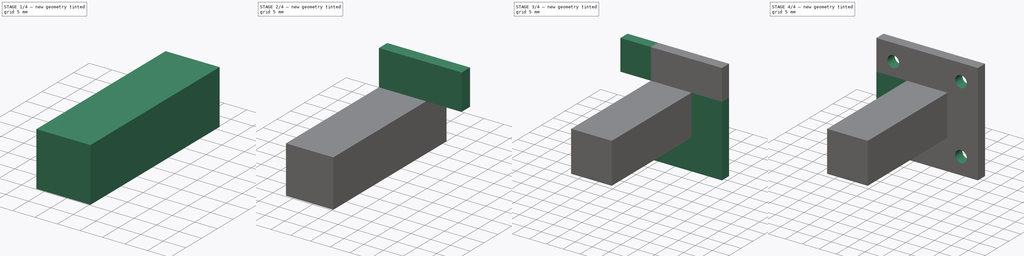
[diagram: build sequence overview — one tinted view per stage of 4, left to right]
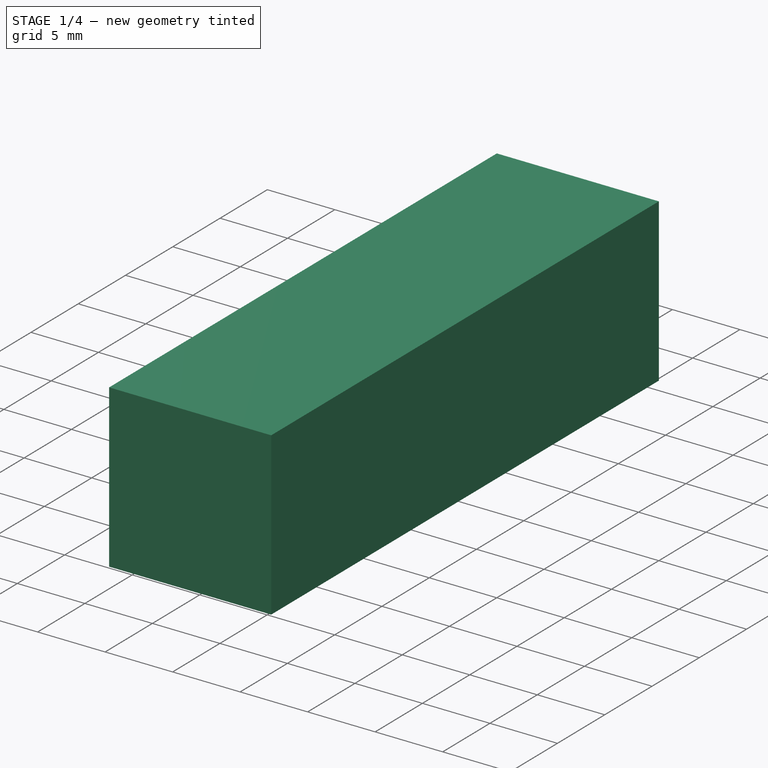
[diagram: stage 1 of 4 — iso view after this stage's code; geometry added in this stage tinted green]
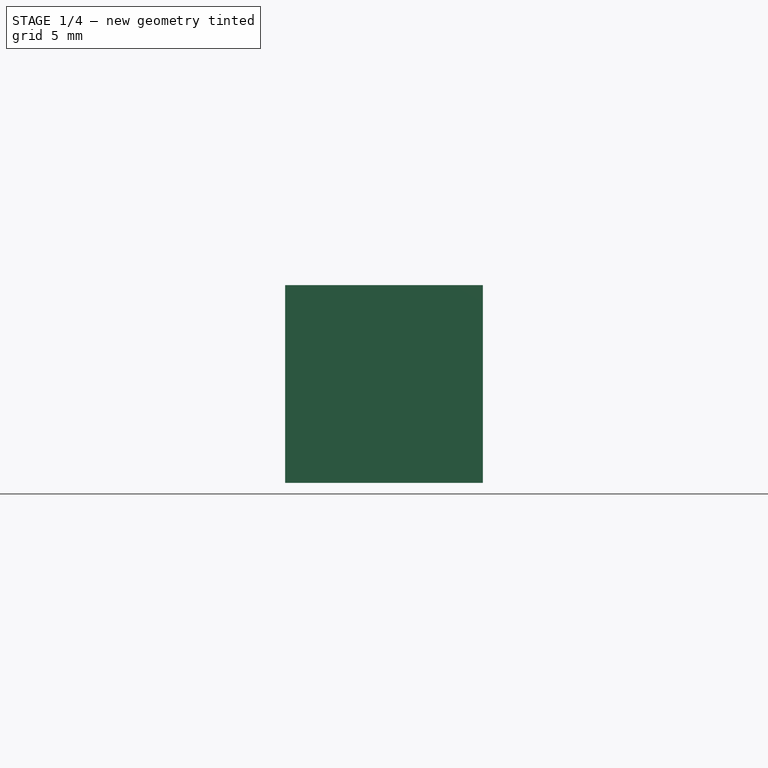
[diagram: stage 1 of 4 — front view after this stage's code; geometry added in this stage tinted green]
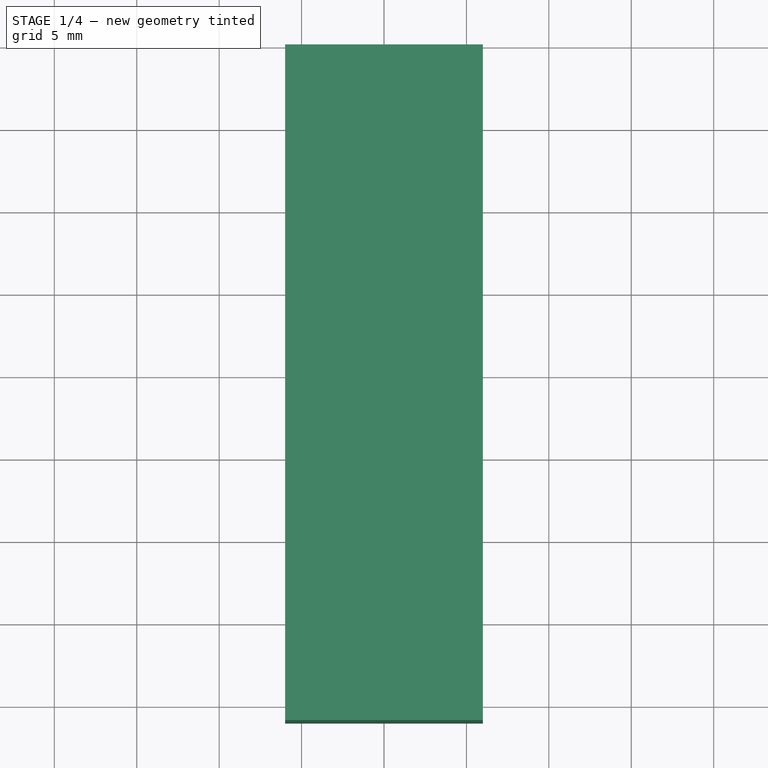
[diagram: stage 1 of 4 — top view after this stage's code; geometry added in this stage tinted green]
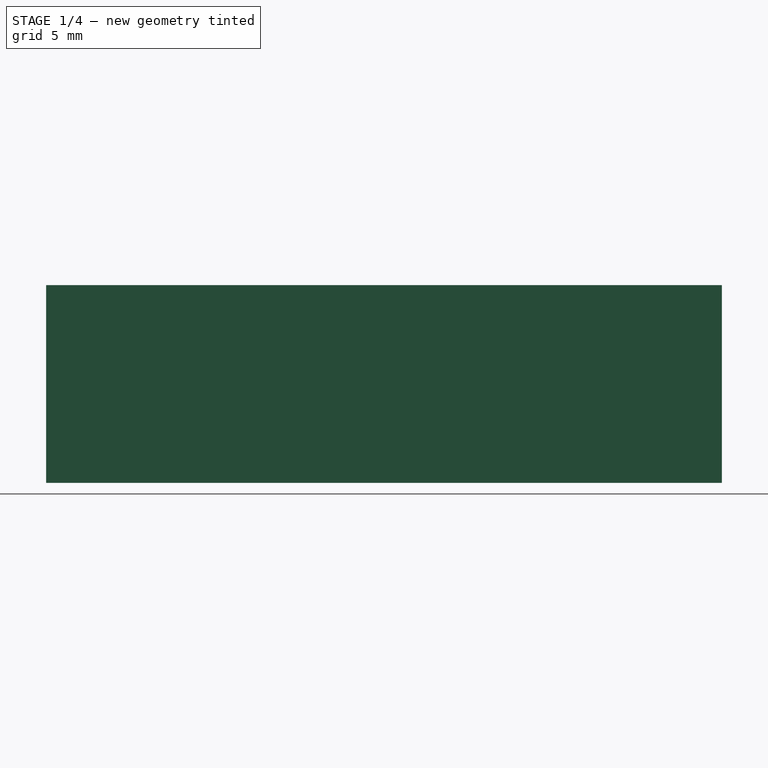
[diagram: stage 1 of 4 — right view after this stage's code; geometry added in this stage tinted green]
FCSTD DOCUMENT  (FreeCAD 0.18.4R)
Label: crystal_holder
License: All rights reserved
LicenseURL: http://en.wikipedia.org/wiki/All_rights_reserved
objects: PartDesign::Pad×7, Sketcher::SketchObject×5, PartDesign::Pocket×2, PartDesign::Body×1
note: 24 computed .brp shape members not serialized (recipe doc carries the construction recipe); baked Part::Feature solids carry a one-line shape summary decoded from their .brp

FEATURE [Sketcher::SketchObject] Sketch
  MapMode = 5
  Placement = pos=(0,0,0) rot=(1,0,0;1.5708rad)
  Support = -> [XZ_Plane]
  sketch-geometry (4):
    g0: LineSegment StartX=-6 StartY=6 StartZ=0 EndX=6 EndY=6 EndZ=0
    g1: LineSegment StartX=6 StartY=6 StartZ=0 EndX=6 EndY=-6 EndZ=0
    g2: LineSegment StartX=6 StartY=-6 StartZ=0 EndX=-6 EndY=-6 EndZ=0
    g3: LineSegment StartX=-6 StartY=-6 StartZ=0 EndX=-6 EndY=6 EndZ=0
  constraints (12):
    c: Coincident(g0,g1)
    c: Coincident(g1,g2)
    c: Coincident(g2,g3)
    c: Coincident(g3,g0)
    c: Horizontal(g0)
    c: Horizontal(g2)
    c: Vertical(g1)
    c: Vertical(g3)
    c: DistanceX(g0,g0) = 12
    c: DistanceY(g1,g1) = 12
    c: Distance(g-1,g0) = 6
    c: Distance(g-1,g1) = 6
FEATURE [PartDesign::Pad] Pad
  Length = 41
  Length2 = 100
  Placement = pos=(0,0,0) rot=(1,0,0;1.5708rad)
  Profile = -> Sketch
  Type = 0
FEATURE [Sketcher::SketchObject] Sketch001
  MapMode = 5
  Placement = pos=(0,0,0) rot=(-1,0,0;1.5708rad)
  Support = -> [Pad]
  sketch-geometry (4):
    g0: LineSegment StartX=-3.75 StartY=1.875 StartZ=0 EndX=3.75 EndY=1.875 EndZ=0
    g1: LineSegment StartX=3.75 StartY=1.875 StartZ=0 EndX=3.75 EndY=-1.875 EndZ=0
    g2: LineSegment StartX=3.75 StartY=-1.875 StartZ=0 EndX=-3.75 EndY=-1.875 EndZ=0
    g3: LineSegment StartX=-3.75 StartY=-1.875 StartZ=0 EndX=-3.75 EndY=1.875 EndZ=0
  constraints (12):
    c: Coincident(g0,g1)
    c: Coincident(g1,g2)
    c: Coincident(g2,g3)
    c: Coincident(g3,g0)
    c: Horizontal(g0)
    c: Horizontal(g2)
    c: Vertical(g1)
    c: Vertical(g3)
    c: DistanceX(g0,g0) = 7.5
    c: DistanceY(g1,g1) = 3.75
    c: Distance(g-1,g2) = 1.875
    c: Distance(g-1,g3) = 3.75
FEATURE [PartDesign::Pocket] Pocket
  BaseFeature = -> Pad
  Length = 36.1
  Length2 = 100
  Placement = pos=(0,0,0) rot=(1,0,0;1.5708rad)
  Profile = -> Sketch001
  Type = 0
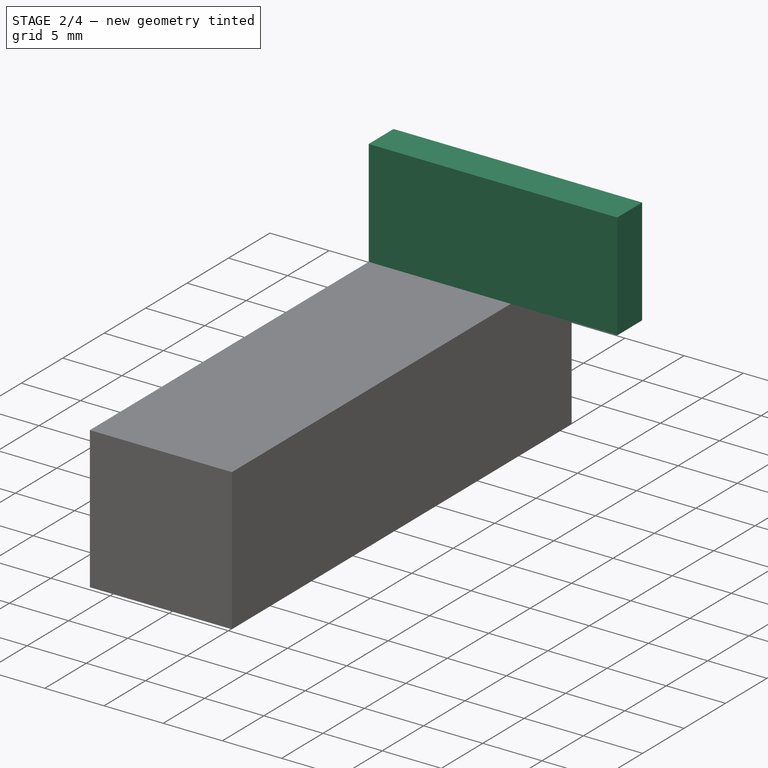
[diagram: stage 2 of 4 — iso view after this stage's code; geometry added in this stage tinted green]
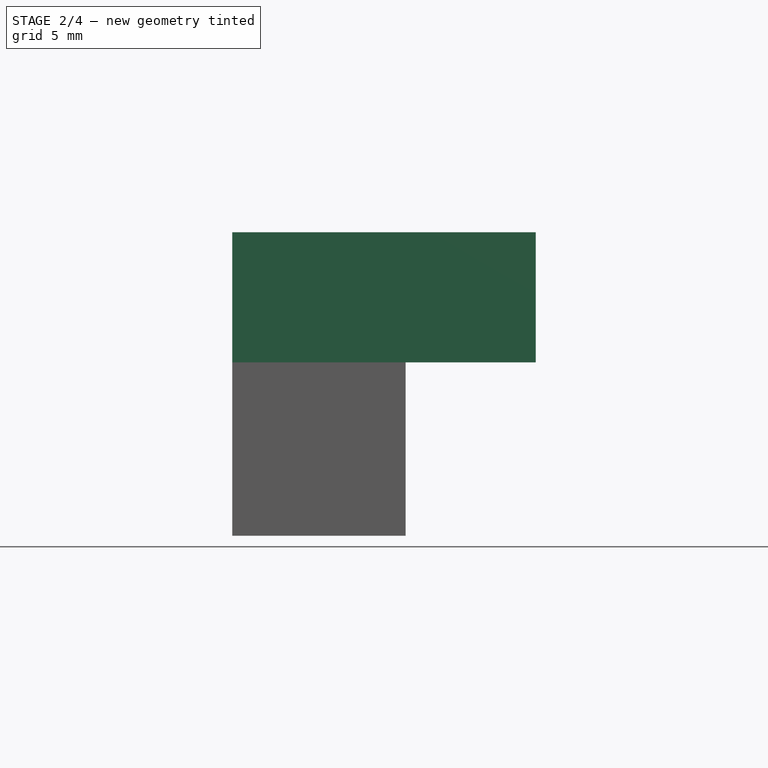
[diagram: stage 2 of 4 — front view after this stage's code; geometry added in this stage tinted green]
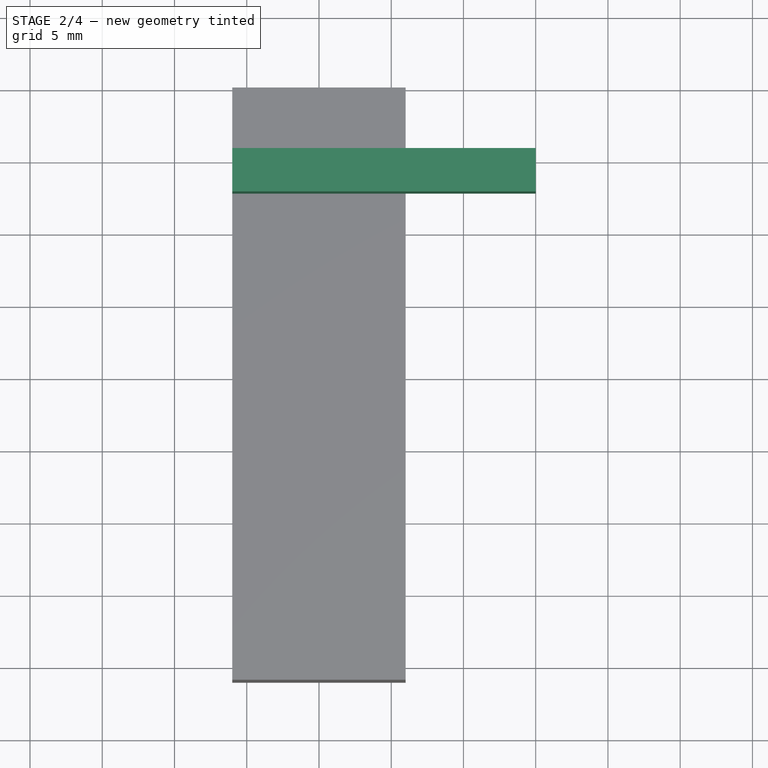
[diagram: stage 2 of 4 — top view after this stage's code; geometry added in this stage tinted green]
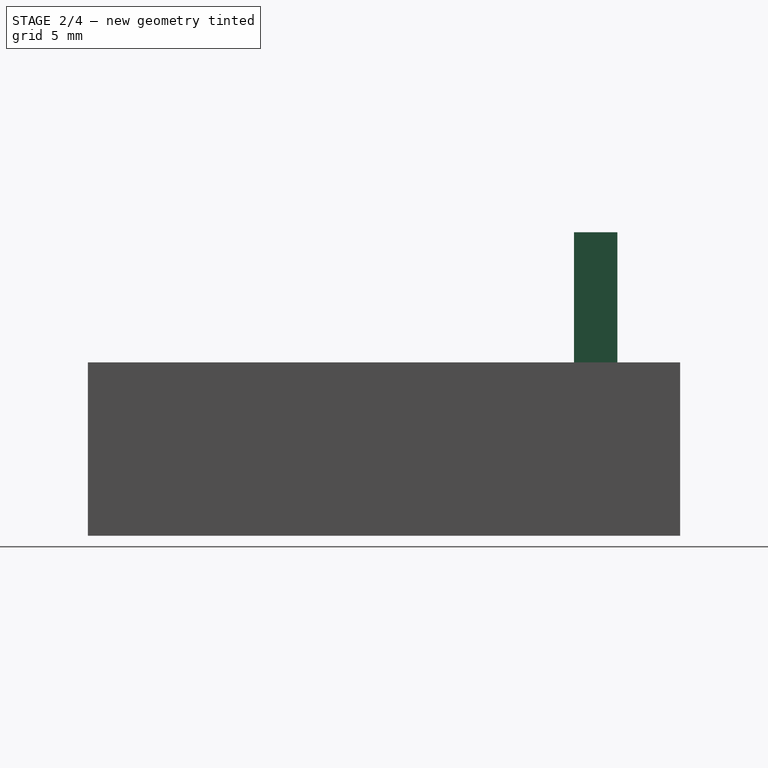
[diagram: stage 2 of 4 — right view after this stage's code; geometry added in this stage tinted green]
FEATURE [Sketcher::SketchObject] Sketch002
  ExternalGeometry = -> [Pocket]
  MapMode = 5
  Placement = pos=(0,6.7e-15,6) rot=(0,0,1;3.14159rad)
  Support = -> [Pocket]
FEATURE [Sketcher::SketchObject] Sketch003
  ExternalGeometry = -> [Pocket]
  MapMode = 5
  Placement = pos=(0,6.7e-15,6) rot=(0,0,1;3.14159rad)
  Support = -> [Pocket]
  sketch-geometry (4):
    g0: LineSegment StartX=-6 StartY=7.35 StartZ=0 EndX=6 EndY=7.35 EndZ=0
    g1: LineSegment StartX=6 StartY=7.35 StartZ=0 EndX=6 EndY=4.35 EndZ=0
    g2: LineSegment StartX=6 StartY=4.35 StartZ=0 EndX=-6 EndY=4.35 EndZ=0
    g3: LineSegment StartX=-6 StartY=4.35 StartZ=0 EndX=-6 EndY=7.35 EndZ=0
  constraints (12):
    c: Coincident(g0,g1)
    c: Coincident(g1,g2)
    c: Coincident(g2,g3)
    c: Coincident(g3,g0)
    c: Horizontal(g0)
    c: Horizontal(g2)
    c: Vertical(g1)
    c: Vertical(g3)
    c: Distance(g-1,g2) = 4.35
    c: DistanceY(g1,g1) = 3
    c: PointOnObject(g1,g-4)
    c: PointOnObject(g2,g-3)
FEATURE [PartDesign::Pad] Pad001
  BaseFeature = -> Pocket
  Length = 9
  Length2 = 100
  Placement = pos=(0,0,0) rot=(1,0,0;1.5708rad)
  Profile = -> Sketch003
  Type = 0
FEATURE [PartDesign::Pad] Pad002
  BaseFeature = -> Pad001
  Length = 9
  Length2 = 100
  Placement = pos=(0,0,0) rot=(1,0,0;1.5708rad)
  Profile = -> Pad001 [Face11]
  Type = 0
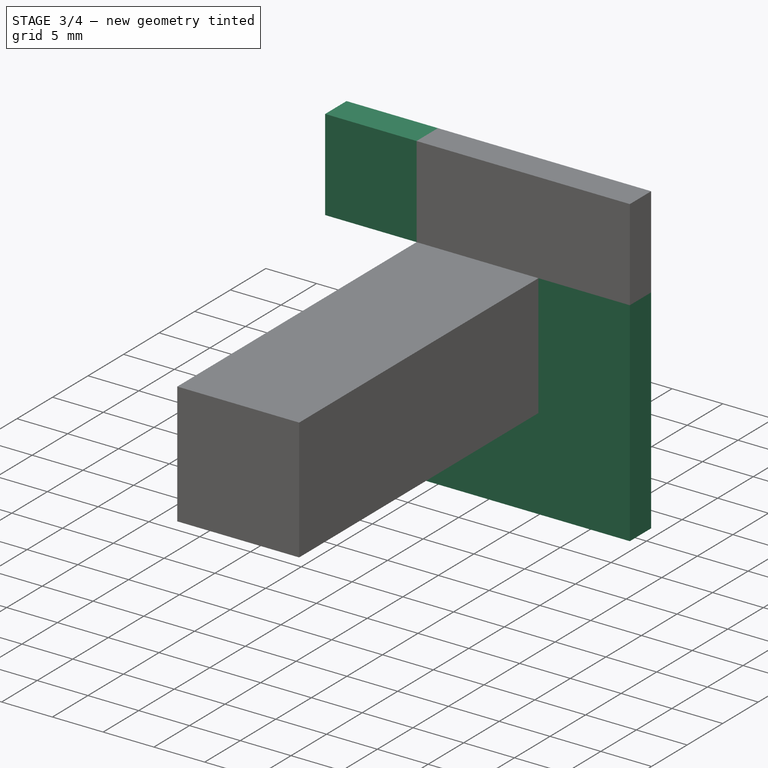
[diagram: stage 3 of 4 — iso view after this stage's code; geometry added in this stage tinted green]
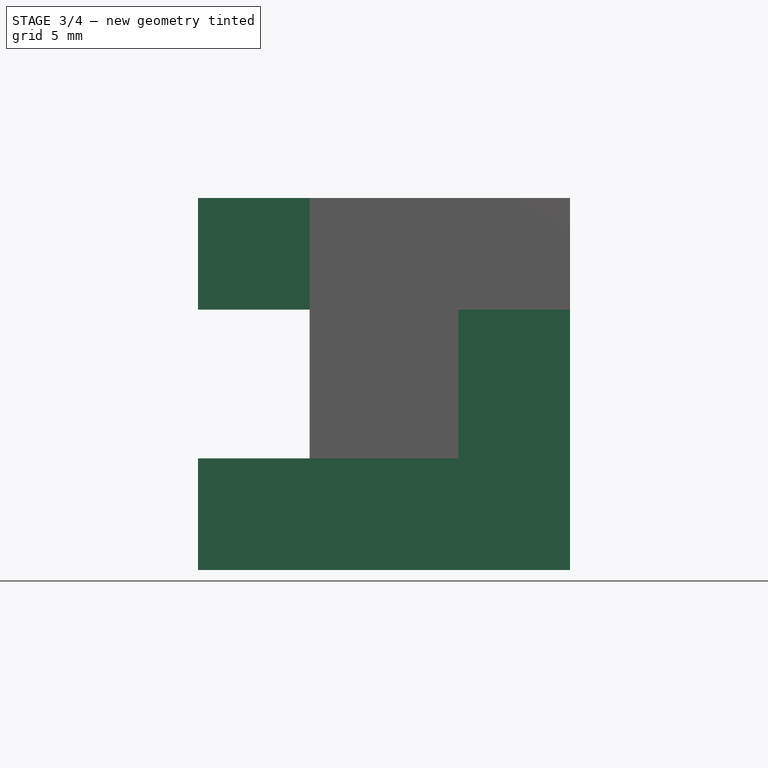
[diagram: stage 3 of 4 — front view after this stage's code; geometry added in this stage tinted green]
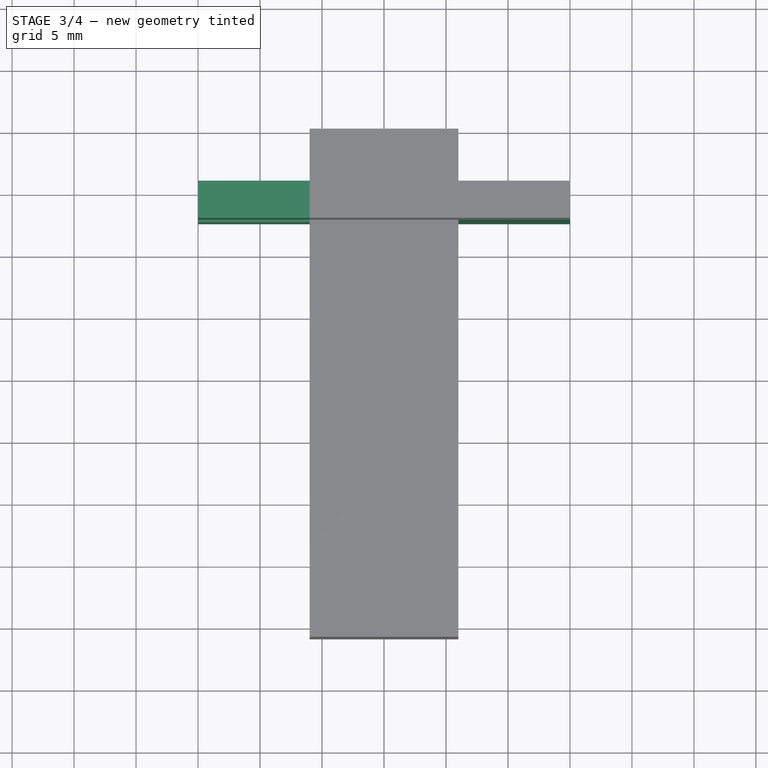
[diagram: stage 3 of 4 — top view after this stage's code; geometry added in this stage tinted green]
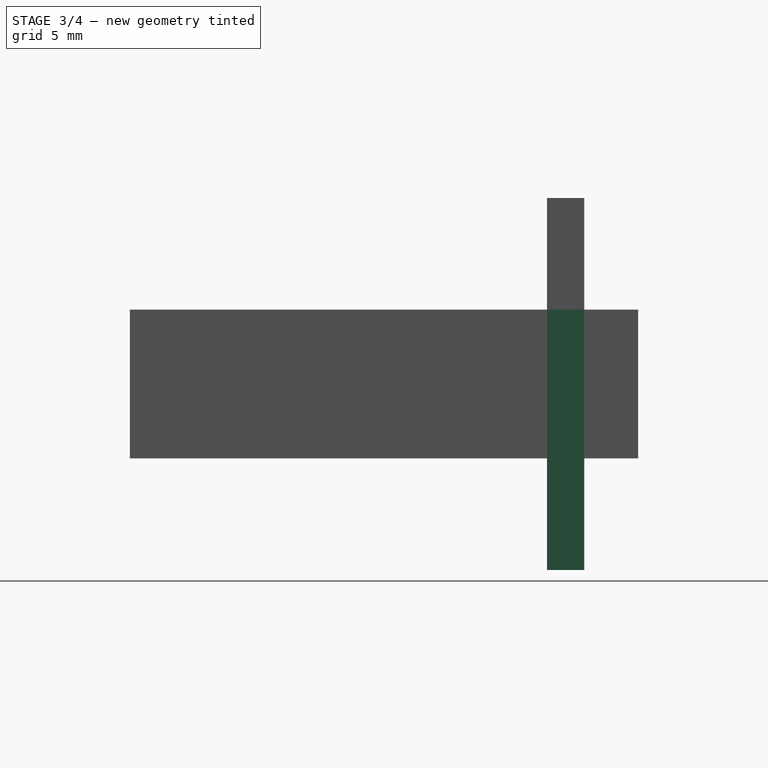
[diagram: stage 3 of 4 — right view after this stage's code; geometry added in this stage tinted green]
FEATURE [PartDesign::Pad] Pad003
  BaseFeature = -> Pad002
  Length = 21
  Length2 = 100
  Placement = pos=(0,0,0) rot=(1,0,0;1.5708rad)
  Profile = -> Pad002 [Face11]
  Type = 0
FEATURE [PartDesign::Pad] Pad004
  BaseFeature = -> Pad003
  Length = 21
  Length2 = 100
  Placement = pos=(0,0,0) rot=(1,0,0;1.5708rad)
  Profile = -> Pad003 [Face17]
  Type = 0
FEATURE [PartDesign::Pad] Pad005
  BaseFeature = -> Pad004
  Length = 9
  Length2 = 100
  Placement = pos=(0,0,0) rot=(1,0,0;1.5708rad)
  Profile = -> Pad004 [Face12]
  Type = 0
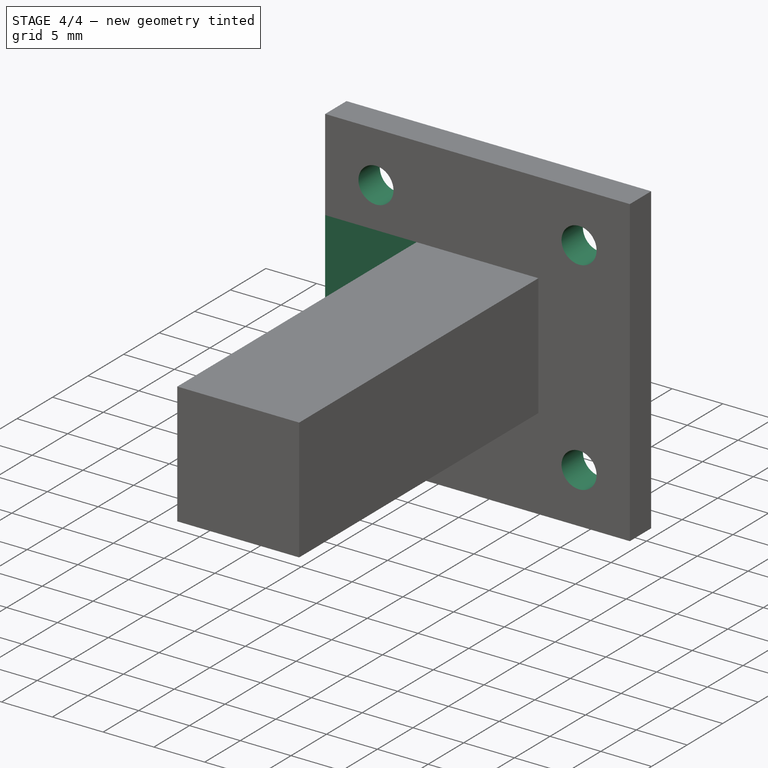
[diagram: stage 4 of 4 — iso view after this stage's code; geometry added in this stage tinted green]
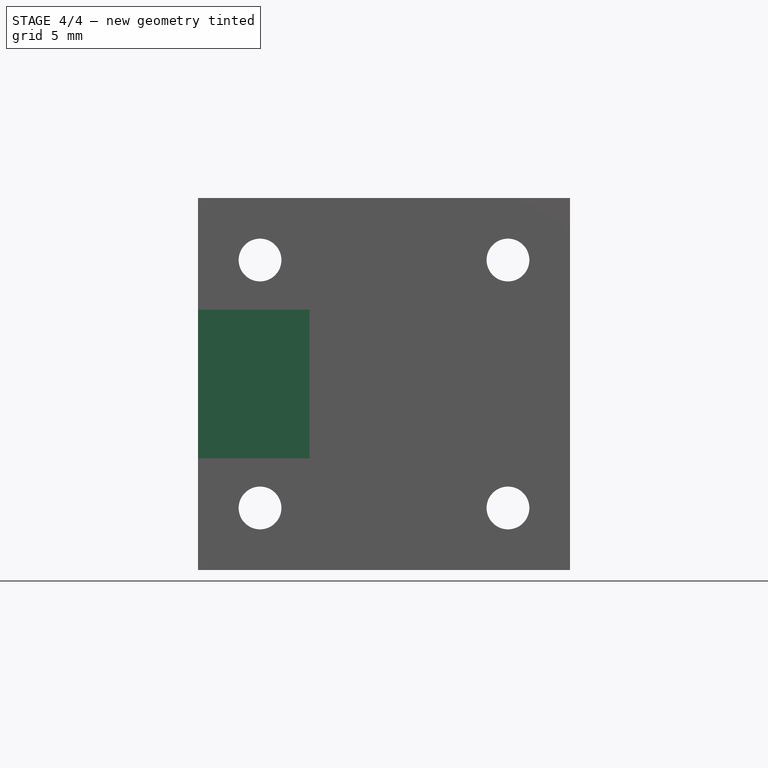
[diagram: stage 4 of 4 — front view after this stage's code; geometry added in this stage tinted green]
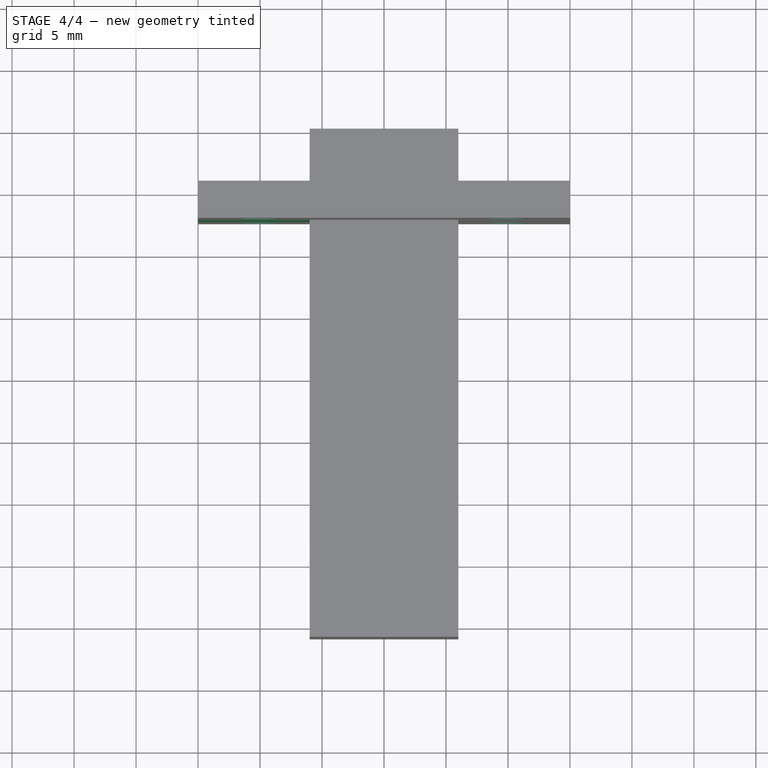
[diagram: stage 4 of 4 — top view after this stage's code; geometry added in this stage tinted green]
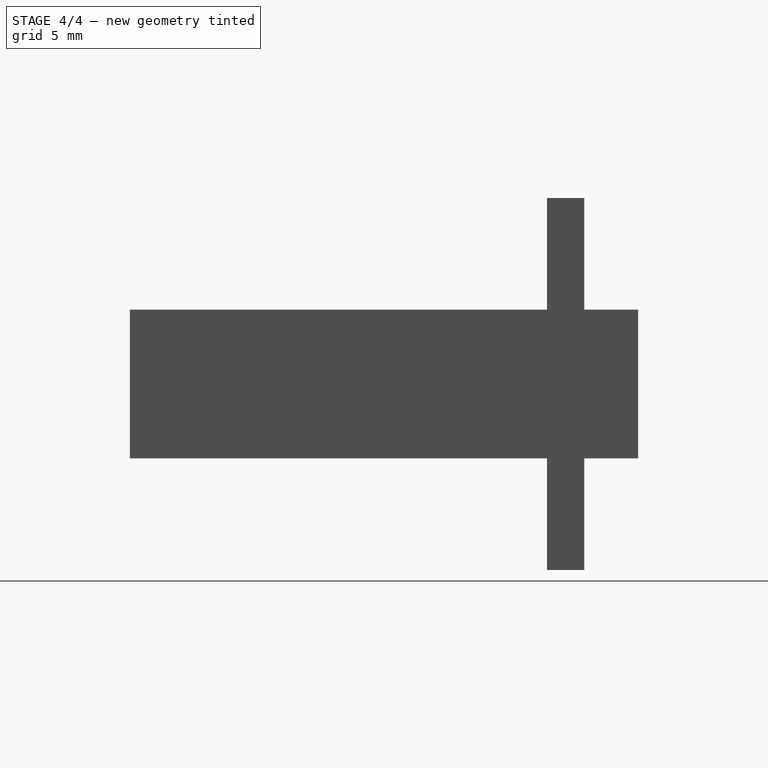
[diagram: stage 4 of 4 — right view after this stage's code; geometry added in this stage tinted green]
FEATURE [PartDesign::Pad] Pad006
  BaseFeature = -> Pad005
  Length = 12
  Length2 = 100
  Placement = pos=(0,0,0) rot=(1,0,0;1.5708rad)
  Profile = -> Pad005 [Face17]
  Type = 0
FEATURE [Sketcher::SketchObject] Sketch004
  MapMode = 5
  Placement = pos=(0,-4.35,1.64e-14) rot=(-1,0,0;1.5708rad)
  Support = -> [Pad006]
  sketch-geometry (4):
    g0: Circle CenterX=-10 CenterY=10 CenterZ=0 NormalX=0 NormalY=0 NormalZ=1 AngleXU=0 Radius=1.725
    g1: Circle CenterX=10 CenterY=10 CenterZ=0 NormalX=0 NormalY=0 NormalZ=1 AngleXU=0 Radius=1.725
    g2: Circle CenterX=10 CenterY=-10 CenterZ=0 NormalX=0 NormalY=0 NormalZ=1 AngleXU=0 Radius=1.725
    g3: Circle CenterX=-10 CenterY=-10 CenterZ=0 NormalX=0 NormalY=0 NormalZ=1 AngleXU=0 Radius=1.725
  constraints (12):
    c: DistanceX(g-2,g0) = -10
    c: DistanceY(g-1,g0) = 10
    c: DistanceX(g-2,g1) = 10
    c: DistanceY(g-1,g1) = 10
    c: DistanceY(g-1,g2) = -10
    c: DistanceX(g-2,g2) = 10
    c: DistanceX(g-2,g3) = -10
    c: DistanceY(g-1,g3) = -10
    c: Diameter(g2) = 3.45
    c: Diameter(g3) = 3.45
    c: Diameter(g1) = 3.45
    c: Diameter(g0) = 3.45
FEATURE [PartDesign::Pocket] Pocket001
  BaseFeature = -> Pad006
  Length = 5
  Length2 = 100
  Placement = pos=(0,0,0) rot=(1,0,0;1.5708rad)
  Profile = -> Sketch004
  Type = 1
FEATURE [PartDesign::Body] Body
  Group = -> [Sketch,Pad,Sketch001,Pocket,Sketch002,Sketch003,Pad001,Pad002,Pad003,Pad004,Pad005,Pad006,Sketch004,Pocket001]
  Origin = -> Origin
  Tip = -> Pocket001
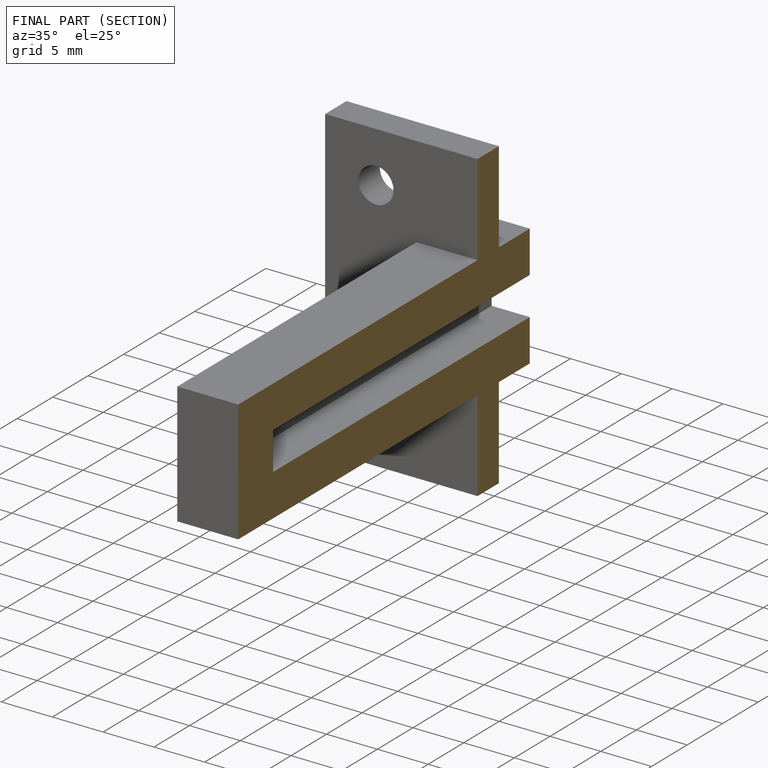
[diagram: finished part — half-section view (interior)]
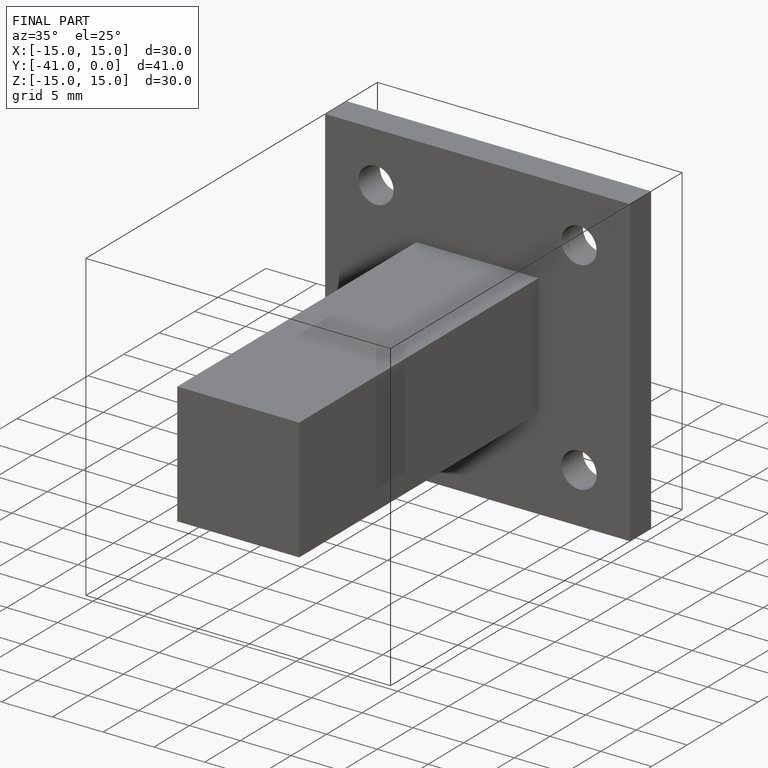
[diagram: finished part — iso view with bounding-box wireframe]
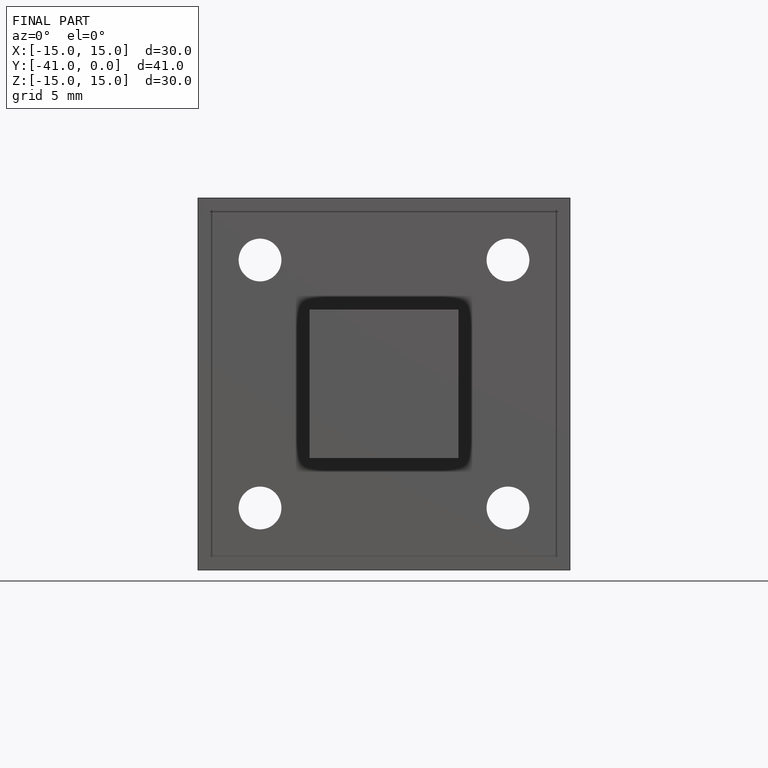
[diagram: finished part — front view with bounding-box wireframe]
